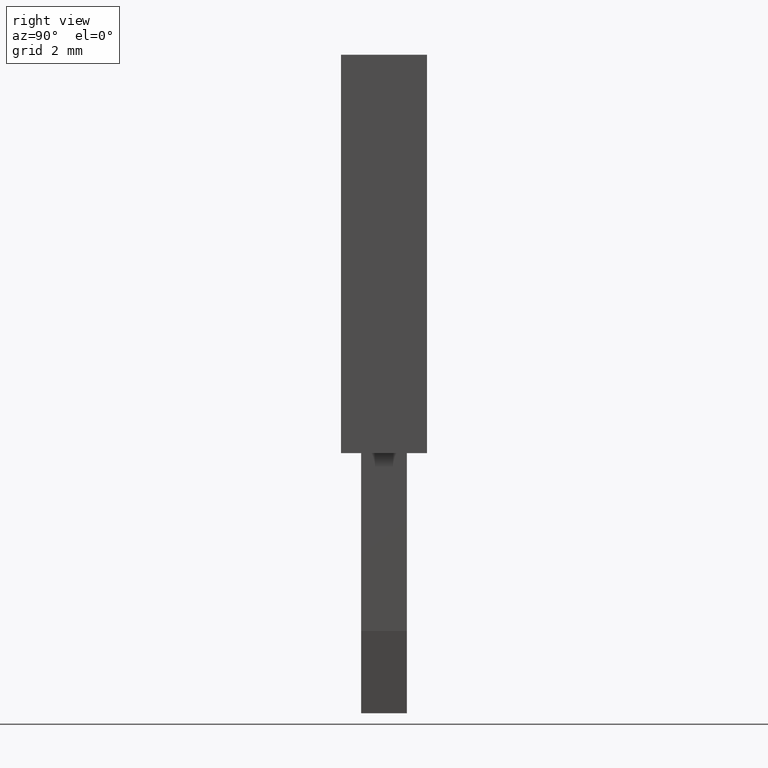
[diagram: clean part render]
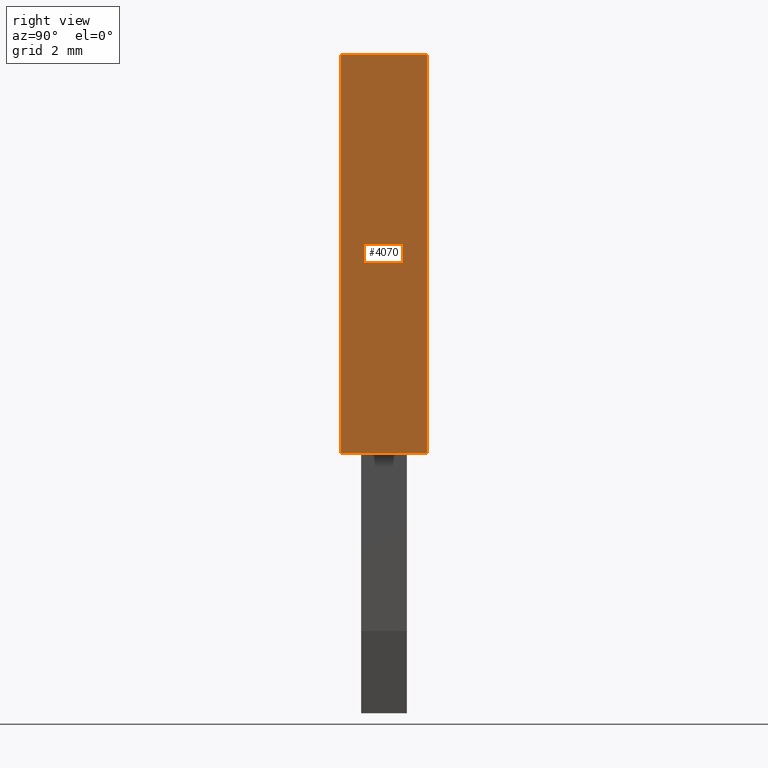
[diagram: same view with one face highlighted and labeled with its STEP entity id]
A machine part, right view. The second image highlights one B-rep face of the part: STEP entity #4070.
In plain terms, the highlighted planar face has unit normal (1, 0, -0).
Its self-contained STEP definition (entity closure, byte-faithful):
#400=CARTESIAN_POINT('',(2.60716722168538,-12.605124,60.7099999999988));
#410=DIRECTION('',(0.,1.,6.93889390390723E-17));
#420=VECTOR('',#410,1.);
#430=LINE('',#400,#420);
#440=CARTESIAN_POINT('',(2.60716722168537,-23.0750000000004,
60.7099999999988));
#450=VERTEX_POINT('',#440);
#460=CARTESIAN_POINT('',(2.60716722168537,-9.17500000000041,
60.7099999999988));
#470=VERTEX_POINT('',#460);
#480=EDGE_CURVE('',#450,#470,#430,.T.);
#1190=CARTESIAN_POINT('',(2.60716722168539,-9.17500000000041,
60.7099999999988));
#1200=DIRECTION('',(1.,0.,1.20370621524202E-33));
#1210=VECTOR('',#1200,1.);
#1220=LINE('',#1190,#1210);
#1230=CARTESIAN_POINT('',(5.60716722168538,-9.17500000000041,
60.7099999999988));
#1240=VERTEX_POINT('',#1230);
#1250=EDGE_CURVE('',#470,#1240,#1220,.T.);
#2350=CARTESIAN_POINT('',(5.60716722168538,-23.0750000000004,
60.7099999999988));
#2360=VERTEX_POINT('',#2350);
#2390=CARTESIAN_POINT('',(5.60716722168538,-12.605124,60.7099999999988))
;
#2400=DIRECTION('',(0.,1.,6.93889390390723E-17));
#2410=VECTOR('',#2400,1.);
#2420=LINE('',#2390,#2410);
#2430=EDGE_CURVE('',#2360,#1240,#2420,.T.);
#3910=CARTESIAN_POINT('',(3.01698249421054,-16.2920214897594,
60.7099999999988));
#3920=DIRECTION('',(-1.20370621524202E-33,-6.93889390390723E-17,1.));
#3930=DIRECTION('',(1.,0.,1.20370621524202E-33));
#3940=AXIS2_PLACEMENT_3D('',#3910,#3920,#3930);
#3950=PLANE('',#3940);
#3960=ORIENTED_EDGE('',*,*,#1250,.F.);
#3970=ORIENTED_EDGE('',*,*,#2430,.T.);
#3980=CARTESIAN_POINT('',(2.60716722168538,-23.0750000000004,
60.7099999999988));
#3990=DIRECTION('',(1.,0.,1.20370621524202E-33));
#4000=VECTOR('',#3990,1.);
#4010=LINE('',#3980,#4000);
#4020=EDGE_CURVE('',#450,#2360,#4010,.T.);
#4030=ORIENTED_EDGE('',*,*,#4020,.T.);
#4040=ORIENTED_EDGE('',*,*,#480,.F.);
#4050=EDGE_LOOP('',(#4040,#4030,#3970,#3960));
#4060=FACE_OUTER_BOUND('',#4050,.T.);
#4070=ADVANCED_FACE('',(#4060),#3950,.T.);